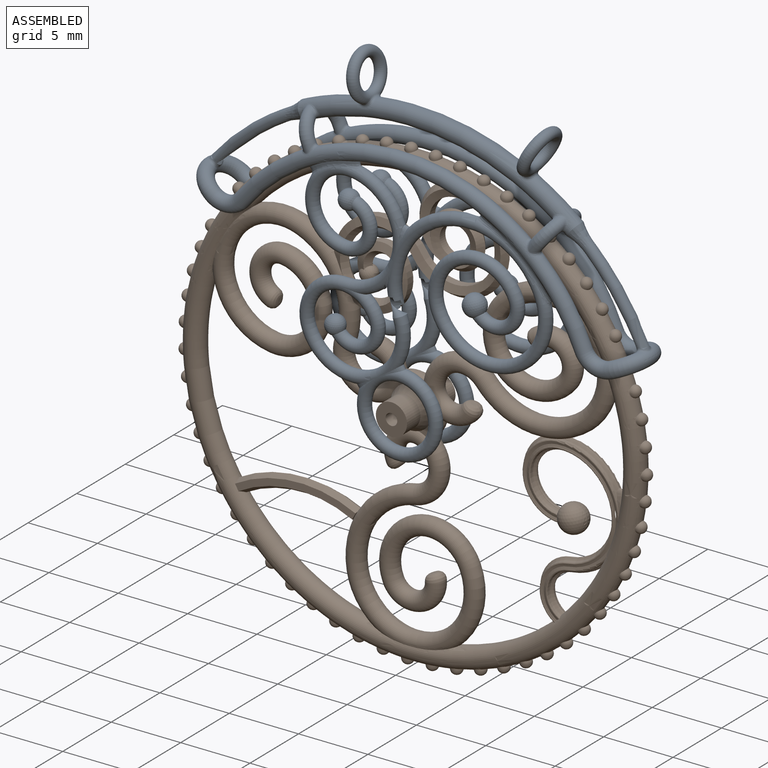
[diagram: assembled view]
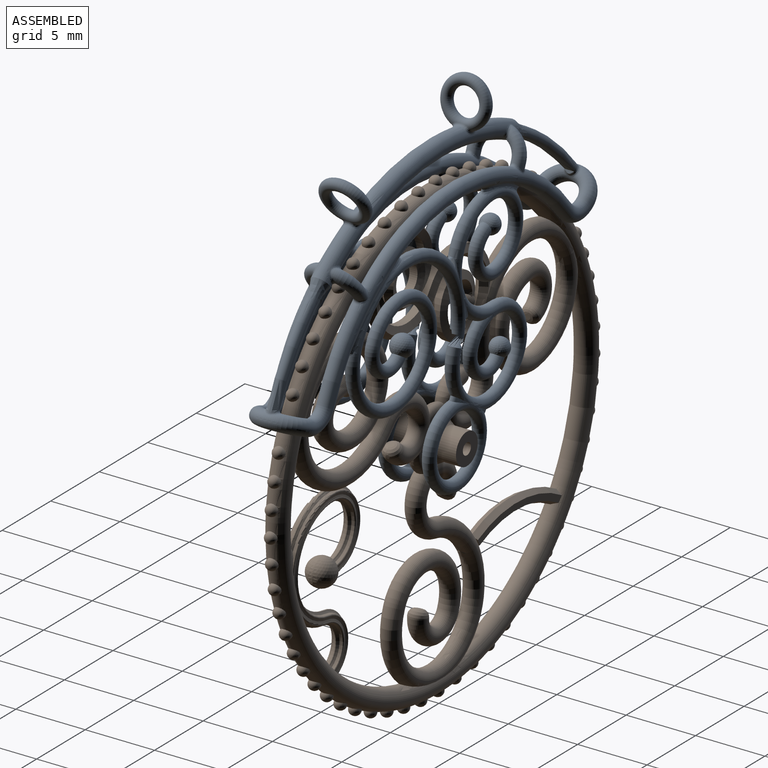
[diagram: assembled view, second angle]
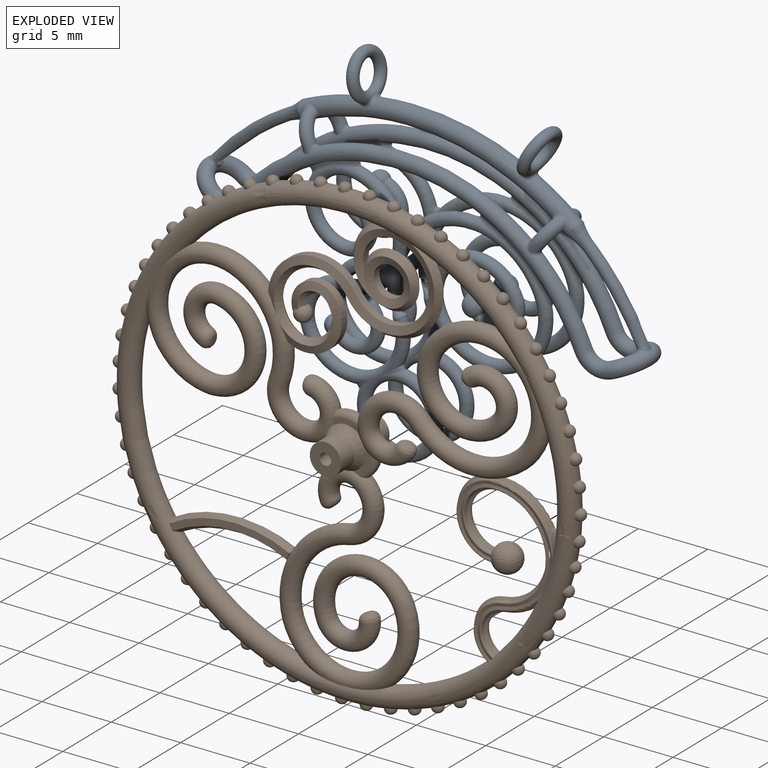
[diagram: exploded view]
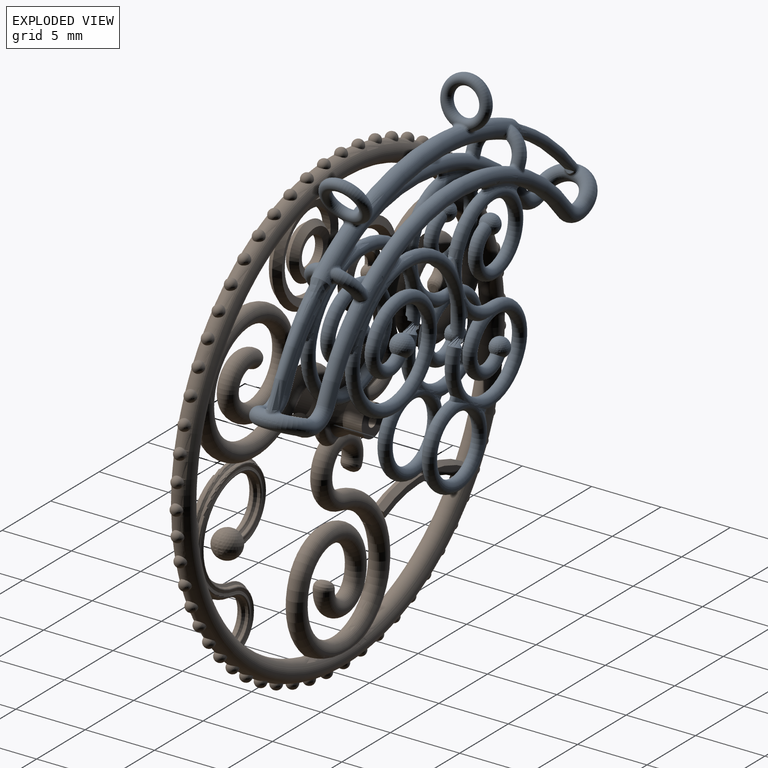
[diagram: exploded view, second angle]
ASSEMBLY  parts=2 mates=2
PART A: 101 faces, bbox 29.9x4.8x25.5 mm
  f0: bspline ~5.75x3.38mm, area 0.4mm2, adj f3,f90,f91,f93
  f1: bspline ~3.45x0.41mm, area 0.1mm2, adj f98,f99,f100
  f2: bspline ~5.74x3.36mm, area 0.4mm2, adj f4,f84,f85,f87
  f3: bspline ~0.48x0.41mm, area 0mm2, adj f0,f92,f95
  f4: bspline ~0.48x0.41mm, area 0mm2, adj f2,f86,f89
  f5: torus R=18.27mm, axis (0,1,0), area 76.9mm2, adj f24,f25,f56,f57,f58,f59,f60,f61
  f6: torus R=1.6mm, axis (1,0,0), area 5.1mm2, adj f17,f58
  f7: torus R=1.6mm, axis (0.5,0,0.87), area 5.1mm2, adj f20,f60
  f8: torus R=18.28mm, axis (0,-1,0), area 16.9mm2, adj f63,f68,f69
  f9: torus R=1.6mm, axis (0,0,1), area 16.4mm2, adj f10,f11,f62
  f10: torus R=1.5mm, axis (0,1,0), area 8.1mm2, adj f9,f15
  f11: torus R=1.5mm, axis (0,1,0), area 8.1mm2, adj f9,f16
  f12: torus R=1.6mm, axis (0.87,0,-0.5), area 16.4mm2, adj f13,f14,f63
  f13: torus R=1.5mm, axis (0,-1,0), area 8.1mm2, adj f12,f16
  f14: torus R=1.5mm, axis (0,-1,0), area 8.1mm2, adj f12,f15
  f15: torus R=14.31mm, axis (0,-1,0), area 92.2mm2, adj f10,f14,f64,f66,f79,f84,f86
  f16: torus R=14.31mm, axis (0,-1,0), area 91.2mm2, adj f11,f13,f65,f67,f90,f92,f98
  f17: cylinder r=0.45mm len=0.9mm, axis (0,0,-1), area 0.9mm2, adj f6,f67
  f18: cylinder r=0.45mm len=0.9mm, axis (0,0,1), area 0.9mm2, adj f19,f66
  f19: torus R=1.6mm, axis (1,0,0), area 5.1mm2, adj f18,f59
  f20: cylinder r=0.45mm len=1.04mm, axis (0.87,0,-0.5), area 0.9mm2, adj f7,f65
  f21: cylinder r=0.45mm len=1.04mm, axis (-0.87,0,0.5), area 0.9mm2, adj f22,f64
  f22: torus R=1.6mm, axis (0.5,0,0.87), area 5.1mm2, adj f21,f61
  f23: torus R=18.07mm, axis (0,1,0), area 17mm2, adj f62,f70,f71
  f24: cone r=0.65mm half-angle=22deg, axis (-1,0,0.04), area 0mm2, adj f5,f68
  f25: cone r=0.65mm half-angle=22deg, axis (0.46,0,0.89), area 0mm2, adj f5,f70
  f26: torus R=5.5mm, axis (0,1,0), area 39.4mm2, adj f28,f32,f73,f74,f91
  f27: torus R=2.6mm, axis (0,1,0), area 20.3mm2, adj f34,f35,f100
  f28: torus R=3.5mm, axis (0,-1,0), area 26.8mm2, adj f26,f30,f72
  f29: torus R=1.6mm, axis (0,1,0), area 12.4mm2, adj f31,f36
  f30: torus R=2.6mm, axis (0,-1,0), area 21.2mm2, adj f28,f33,f34
  f31: torus R=3mm, axis (0,1,0), area 26.6mm2, adj f29,f32
  f32: torus R=4mm, axis (0,1,0), area 35.2mm2, adj f26,f31,f93,f94,f95
  f33: torus R=1.6mm, axis (0,-1,0), area 12.8mm2, adj f30,f39
  f34: torus R=3.8mm, axis (0,1,0), area 26.2mm2, adj f27,f30,f73,f74,f99
  f35: torus R=1.6mm, axis (0,1,0), area 12.7mm2, adj f27,f37
  f36: sphere r=0.78mm, area 6.9mm2, adj f29
  f37: sphere r=0.68mm, area 5.2mm2, adj f35
  f38: torus R=2.57mm, axis (0,-1,0), area 41.3mm2, adj f72
  f39: sphere r=0.67mm, area 4.9mm2, adj f33
  f40: torus R=3.5mm, axis (0,-1,0), area 26.8mm2, adj f42,f45,f75
  f41: torus R=1.6mm, axis (0,1,0), area 12.4mm2, adj f43,f50
  f42: torus R=2.6mm, axis (0,-1,0), area 21.2mm2, adj f40,f46,f47
  f43: torus R=3mm, axis (0,1,0), area 26.6mm2, adj f41,f44
  f44: torus R=4mm, axis (0,1,0), area 35.2mm2, adj f43,f45,f87,f88,f89
  f45: torus R=5.5mm, axis (0,1,0), area 39.4mm2, adj f40,f44,f76,f77,f85
  f46: torus R=1.6mm, axis (0,-1,0), area 12.8mm2, adj f42,f53
  f47: torus R=3.8mm, axis (0,1,0), area 26.2mm2, adj f42,f48,f76,f77,f96
  f48: torus R=2.6mm, axis (0,1,0), area 20.3mm2, adj f47,f49,f97
  f49: torus R=1.6mm, axis (0,1,0), area 12.7mm2, adj f48,f51
  f50: sphere r=0.78mm, area 6.9mm2, adj f41
  f51: sphere r=0.68mm, area 5.2mm2, adj f49
  f52: torus R=2.57mm, axis (0,-1,0), area 41.3mm2, adj f75
  f53: sphere r=0.67mm, area 4.9mm2, adj f46
  f54: torus R=1.4mm, axis (0.66,0,0.75), area 20.7mm2, adj f57
  f55: torus R=1.4mm, axis (0.97,0,0.24), area 20.3mm2, adj f56
  f56: bspline ~1.47x1.17mm, area 1.3mm2, adj f5,f55
  f57: bspline ~1.35x0.94mm, area 1.3mm2, adj f5,f54
  f58: bspline ~1.3x1mm, area 0.8mm2, adj f5,f6
  f59: bspline ~1.31x1mm, area 0.8mm2, adj f5,f19
  f60: bspline ~1.24x1.1mm, area 0.8mm2, adj f5,f7
  f61: bspline ~1.24x1.1mm, area 0.8mm2, adj f5,f22
  f62: bspline ~1.19x0.88mm, area 0.7mm2, adj f9,f23
  f63: bspline ~1.19x0.79mm, area 0.7mm2, adj f8,f12
  f64: bspline ~1.15x0.95mm, area 0.7mm2, adj f15,f21
  f65: bspline ~1.15x0.95mm, area 0.7mm2, adj f16,f20
  f66: bspline ~1.28x0.95mm, area 0.7mm2, adj f15,f18
  f67: bspline ~1.28x0.95mm, area 0.7mm2, adj f16,f17
  f68: bspline ~1.3x0.95mm, area 0.9mm2, adj f8,f24,f69
  f69: bspline ~1.6x1.3mm, area 3.5mm2, adj f5,f8,f68
  f70: bspline ~1.28x0.57mm, area 0.4mm2, adj f23,f25,f71
  f71: bspline ~1.92x1.47mm, area 4mm2, adj f5,f23,f70
  f72: bspline ~3.84x0.98mm, area 1.2mm2, adj f28,f38
  f73: bspline ~2.01x1.61mm, area 0.5mm2, adj f26,f34
  f74: bspline ~1.9x1.74mm, area 0.7mm2, adj f26,f34
  f75: bspline ~3.84x0.98mm, area 1.2mm2, adj f40,f52
  f76: bspline ~2.01x1.61mm, area 0.5mm2, adj f45,f47
  f77: bspline ~1.9x1.74mm, area 0.7mm2, adj f45,f47
  f78: bspline ~3.76x0.69mm, area 0.2mm2, adj f98,f99,f100
  f79: bspline ~3.82x0.77mm, area 1.4mm2, adj f15,f96,f97
  f80: bspline ~5.39x3.03mm, area 0.4mm2, adj f81,f90,f91,f94
  f81: bspline ~0.48x0.41mm, area 0mm2, adj f80,f92,f95
  f82: bspline ~0.48x0.41mm, area 0mm2, adj f83,f86,f89
  f83: bspline ~5.39x3.03mm, area 0.4mm2, adj f82,f84,f85,f88
  f84: bspline ~5.79x3.36mm, area 2.6mm2, adj f2,f15,f83,f85,f86
  f85: bspline ~5.73x3.42mm, area 2.4mm2, adj f2,f45,f83,f84,f87,f88
  f86: bspline ~0.97x0.74mm, area 0.4mm2, adj f4,f15,f82,f84,f89
  f87: bspline ~0.44x0.27mm, area 0mm2, adj f2,f44,f85,f89
  f88: bspline ~0.66x0.3mm, area 0mm2, adj f44,f83,f85,f89
  f89: bspline ~0.83x0.65mm, area 0.2mm2, adj f4,f44,f82,f86,f87,f88
  f90: bspline ~5.78x3.36mm, area 2.6mm2, adj f0,f16,f80,f91,f92
  f91: bspline ~5.77x3.43mm, area 2.4mm2, adj f0,f26,f80,f90,f93,f94
  f92: bspline ~0.97x0.74mm, area 0.4mm2, adj f3,f16,f81,f90,f95
  f93: bspline ~0.45x0.27mm, area 0mm2, adj f0,f32,f91,f95
  f94: bspline ~0.67x0.31mm, area 0mm2, adj f32,f80,f91,f95
  f95: bspline ~0.83x0.65mm, area 0.2mm2, adj f3,f32,f81,f92,f93,f94
  f96: bspline ~1.3x0.77mm, area 0.5mm2, adj f47,f79,f97
  f97: bspline ~3.48x0.8mm, area 1.3mm2, adj f48,f79,f96
  f98: bspline ~4.31x0.87mm, area 1.9mm2, adj f1,f16,f78,f99,f100
  f99: bspline ~0.84x0.72mm, area 0.5mm2, adj f1,f34,f78,f98,f100
  f100: bspline ~3.48x0.8mm, area 1.3mm2, adj f1,f27,f78,f98,f99
PART B: 346 faces, bbox 36x5x36 mm
  f0: torus R=15.88mm, axis (0,-1,0), area 406.5mm2, adj f1,f103,f104,f105,f106,f107,f108,f109
  f1: torus R=4.1mm, axis (0,-1,0), area 1.4mm2, adj f0,f2,f101,f102,f103,f118
  f2: cone r=4.22mm half-angle=14.3deg, axis (0,-1,0), area 0.8mm2, adj f1,f3,f99,f100,f102
  f3: torus R=5.2mm, axis (0,1,0), area 32.3mm2, adj f2,f4,f5,f6,f7,f28,f29,f30
  f4: torus R=4.3mm, axis (0,-1,0), area 0.8mm2, adj f3,f5,f100,f102
  f5: cone r=4.22mm half-angle=48.5deg, axis (0,1,0), area 0.8mm2, adj f3,f4,f6,f102
  f6: cone r=4.19mm half-angle=15.1deg, axis (0,1,0), area 0.7mm2, adj f3,f5,f7,f102,f117
  f7: cone r=2.7mm half-angle=15.1deg, axis (0,1,0), area 1.1mm2, adj f3,f6,f8,f27,f28
  f8: torus R=2.61mm, axis (0,-1,0), area 1.7mm2, adj f7,f9,f27,f117
  f9: cone r=2.41mm half-angle=72.7deg, axis (0,-1,0), area 1.2mm2, adj f8,f10,f27,f116
  f10: cone r=2.27mm half-angle=74.3deg, axis (0,1,0), area 1mm2, adj f9,f11,f27,f114
  f11: torus R=2.21mm, axis (0,-1,0), area 1.5mm2, adj f10,f12,f26,f27
  f12: torus R=3.7mm, axis (0,-1,0), area 2.6mm2, adj f11,f13,f114,f301
  f13: cone r=3.57mm half-angle=14.3deg, axis (0,-1,0), area 1.6mm2, adj f12,f14,f26,f300
  f14: cone r=3.47mm half-angle=45.7deg, axis (0,-1,0), area 1.6mm2, adj f13,f15,f25,f299
  f15: cone r=1.98mm half-angle=45.7deg, axis (0,-1,0), area 0.9mm2, adj f14,f16,f26,f27
  f16: torus R=2.01mm, axis (0,-1,0), area 1.3mm2, adj f15,f17,f25,f27
  f17: cone r=2.08mm half-angle=45.7deg, axis (0,1,0), area 0.9mm2, adj f16,f18,f24,f27
  f18: cone r=2.12mm half-angle=12.7deg, axis (0,1,0), area 1mm2, adj f17,f19,f23,f27
  f19: torus R=2.21mm, axis (0,-1,0), area 1.4mm2, adj f18,f20,f21,f27
  f20: torus R=3.7mm, axis (0,-1,0), area 2.4mm2, adj f19,f23,f104,f295
  f21: cone r=2.41mm half-angle=75.1deg, axis (0,-1,0), area 1mm2, adj f19,f22,f27,f104
  f22: cone r=2.55mm half-angle=74.3deg, axis (0,1,0), area 1.1mm2, adj f21,f27,f101,f103
  f23: cone r=3.61mm half-angle=12.7deg, axis (0,1,0), area 1.8mm2, adj f18,f20,f24,f296
  f24: cone r=3.57mm half-angle=45.7deg, axis (0,1,0), area 1.6mm2, adj f17,f23,f25,f297
  f25: torus R=3.5mm, axis (0,-1,0), area 2.4mm2, adj f14,f16,f24,f298
  f26: cone r=2.08mm half-angle=14.3deg, axis (0,-1,0), area 0.9mm2, adj f11,f13,f15,f27
  f27: sphere r=1mm, area 11.9mm2, adj f7,f8,f9,f10,f11,f15,f16,f17
  f28: cone r=2.73mm half-angle=48.5deg, axis (0,1,0), area 1.3mm2, adj f3,f7,f27,f29
  f29: torus R=2.81mm, axis (0,-1,0), area 1.4mm2, adj f3,f27,f28,f30
  f30: cone r=2.84mm half-angle=45.7deg, axis (0,-1,0), area 1.1mm2, adj f3,f27,f29,f99
  f31: torus R=2.1mm, axis (0,-1,0), area 19.5mm2, adj f3,f32,f94,f95,f96
  f32: torus R=1.85mm, axis (0,-1,0), area 1.1mm2, adj f31,f33,f91,f94,f96
  f33: plane 1.88x1.14mm, normal (0,-1,0), area 0.7mm2, adj f32,f34,f91,f96
  f34: cone r=1.75mm half-angle=29deg, axis (0,1,0), area 6.4mm2, adj f33,f35,f86,f87,f90,f91,f96
  f35: cylinder r=1.12mm len=2.25mm, axis (0,1,0), area 9.7mm2, adj f34,f36
  f36: plane 2.25x2.25mm, normal (0,-1,0), area 3.4mm2, adj f35,f37
  f37: cylinder r=0.42mm len=5mm, axis (0,1,0), area 13.2mm2, adj f36,f38
  f38: plane 2.25x2.25mm, normal (0,1,0), area 3.4mm2, adj f37,f39
  f39: cylinder r=1.12mm len=2.25mm, axis (0,1,0), area 9.7mm2, adj f38,f40
  f40: cone r=1.75mm half-angle=29deg, axis (0,-1,0), area 6.4mm2, adj f39,f41,f49,f50,f87,f91,f96
  f41: plane 1.74x1.49mm, normal (0,1,0), area 0.7mm2, adj f40,f42,f87,f96
  f42: torus R=1.85mm, axis (0,-1,0), area 1.1mm2, adj f41,f43,f48,f87,f96
  f43: torus R=2.1mm, axis (0,-1,0), area 19.5mm2, adj f42,f44,f45,f48,f87
  f44: torus R=1.85mm, axis (0,-1,0), area 1.1mm2, adj f43,f48,f86,f87,f96
  f45: torus R=5.2mm, axis (0,1,0), area 32.7mm2, adj f43,f46,f47,f314,f315,f317,f318,f319
  f46: plane 0.49x0.44mm, normal (0.75,0,0.66), area 0.1mm2, adj f45,f315,f316,f317
  f47: plane 0.5x0.44mm, normal (0.75,0,0.66), area 0.1mm2, adj f45,f313,f314,f318
  f48: cylinder r=2.25mm len=1.21mm, axis (0,1,0), area 0.2mm2, adj f42,f43,f44,f96
  f49: plane 1.88x1.14mm, normal (0,1,0), area 0.7mm2, adj f40,f91,f95,f96
  f50: plane 1.88x0.82mm, normal (0,1,0), area 0.7mm2, adj f40,f51,f87,f91
  f51: torus R=1.85mm, axis (0,-1,0), area 1.1mm2, adj f50,f52,f54,f87,f91
  f52: cylinder r=2.25mm len=1.51mm, axis (0,1,0), area 0.2mm2, adj f51,f53,f54,f87
  f53: torus R=1.85mm, axis (0,-1,0), area 1.1mm2, adj f52,f54,f87,f90,f91
  f54: torus R=2.1mm, axis (0,-1,0), area 19.5mm2, adj f51,f52,f53,f55,f91
  f55: torus R=5.2mm, axis (0,1,0), area 30.3mm2, adj f54,f56,f69,f82,f83,f84,f85,f324
  f56: bspline ~6.72x3.9mm, area 4.9mm2, adj f55,f57,f69,f85,f292
  f57: bspline ~6.52x6.52mm, area 4.8mm2, adj f56,f58,f66,f68,f293
  f58: bspline ~4.04x2.35mm, area 3.4mm2, adj f57,f59,f65,f85
  f59: bspline ~2.37x1.07mm, area 1.7mm2, adj f58,f60,f63,f64
  f60: bspline ~2.37x1.07mm, area 1.7mm2, adj f59,f61,f64,f65
  f61: bspline ~3.48x1.66mm, area 2.5mm2, adj f60,f62,f64,f83
  f62: cylinder r=1.75mm len=3.48mm, axis (0,1,0), area 3mm2, adj f61,f63,f64,f84
  f63: bspline ~3.48x1.66mm, area 2.5mm2, adj f59,f62,f64,f85
  f64: sphere r=0.6mm, area 3.8mm2, adj f59,f60,f61,f62,f63
  f65: bspline ~4.04x2.35mm, area 3.4mm2, adj f58,f60,f66,f83
  f66: bspline ~6.52x6.52mm, area 4.8mm2, adj f57,f65,f67,f82,f294
  f67: torus R=5.2mm, axis (0,1,0), area 0.1mm2, adj f66
  f68: torus R=5.2mm, axis (0,1,0), area 0.1mm2, adj f57
  f69: cylinder r=3.4mm len=6.41mm, axis (0,1,0), area 5mm2, adj f55,f56,f70,f82
  f70: cylinder r=2.85mm len=5.67mm, axis (0,-1,0), area 6.6mm2, adj f69,f71,f287,f292
  f71: cylinder r=2mm len=3.03mm, axis (0,-1,0), area 2.2mm2, adj f70,f72,f81,f288,f291
  f72: cone r=1.65mm half-angle=36deg, axis (0,1,0), area 1.9mm2, adj f71,f73,f80,f81,f288
  f73: bspline ~3.66x2.96mm, area 3.3mm2, adj f72,f74,f79,f289
  f74: bspline ~3.66x2.96mm, area 3.3mm2, adj f73,f75,f81,f290
  f75: bspline ~4.54x4.54mm, area 2.5mm2, adj f74,f76,f78
  f76: cone r=1.65mm half-angle=72deg, axis (0,1,0), area 2.5mm2, adj f75,f77,f81
  f77: cylinder r=1.1mm len=2.04mm, axis (0,1,0), area 2mm2, adj f76,f78,f80
  f78: cylinder r=1.1mm len=2.04mm, axis (0,-1,0), area 2mm2, adj f75,f77,f79
  f79: bspline ~4.54x4.54mm, area 2.5mm2, adj f73,f78,f80
  f80: cone r=1.1mm half-angle=72deg, axis (0,-1,0), area 2.5mm2, adj f72,f77,f79
  f81: cone r=1.99mm half-angle=36deg, axis (0,-1,0), area 1.9mm2, adj f71,f72,f74,f76,f291
  f82: bspline ~6.72x3.9mm, area 4.9mm2, adj f55,f66,f69,f83,f287
  f83: bspline ~5.95x5.95mm, area 3.8mm2, adj f55,f61,f65,f82,f84
  f84: cylinder r=2.6mm len=4.65mm, axis (0,1,0), area 3.9mm2, adj f55,f62,f83,f85
  f85: bspline ~5.95x5.95mm, area 3.8mm2, adj f55,f56,f58,f63,f84
  f86: plane 1.74x1.49mm, normal (0,-1,0), area 0.7mm2, adj f34,f44,f87,f96
  f87: torus R=1.5mm, axis (0,-1,0), area 13.4mm2, adj f34,f40,f41,f42,f43,f44,f50,f51
  f88: bspline ~1.3x1.29mm, area 2.1mm2, adj f87,f89
  f89: plane 0.4x0.4mm, normal (0.94,0,0.33), area 0.1mm2, adj f88
  f90: plane 1.88x0.82mm, normal (0,-1,0), area 0.7mm2, adj f34,f53,f87,f91
  f91: torus R=1.5mm, axis (0,-1,0), area 13.4mm2, adj f32,f33,f34,f40,f49,f50,f51,f53
  f92: bspline ~1.3x1.25mm, area 2.1mm2, adj f91,f93
  f93: plane 0.41x0.4mm, normal (-0.18,0,-0.98), area 0.1mm2, adj f92
  f94: cylinder r=2.25mm len=1.41mm, axis (0,1,0), area 0.2mm2, adj f31,f32,f91,f95
  f95: torus R=1.85mm, axis (0,-1,0), area 1.1mm2, adj f31,f49,f91,f94,f96
  f96: torus R=1.5mm, axis (0,-1,0), area 13.4mm2, adj f31,f32,f33,f34,f40,f41,f42,f44
  f97: bspline ~1.3x1.1mm, area 2.1mm2, adj f96,f98
  f98: plane 0.4x0.32mm, normal (-0.76,0,0.65), area 0.1mm2, adj f97
  f99: cone r=2.73mm half-angle=14.3deg, axis (0,-1,0), area 1.1mm2, adj f2,f3,f27,f30,f101
  f100: cone r=4.33mm half-angle=45.7deg, axis (0,-1,0), area 0.7mm2, adj f2,f3,f4,f102
  f101: torus R=2.61mm, axis (0,-1,0), area 1.8mm2, adj f1,f22,f27,f99
  f102: bspline ~4.35x3.19mm, area 0.6mm2, adj f1,f2,f4,f5,f6,f100,f117,f118
  f103: cone r=4.04mm half-angle=74.3deg, axis (0,1,0), area 1mm2, adj f0,f1,f22,f104
  f104: cone r=3.9mm half-angle=75.1deg, axis (0,-1,0), area 1.6mm2, adj f0,f20,f21,f103,f105,f312
  f105: cone r=4.04mm half-angle=74.3deg, axis (0,1,0), area 0.5mm2, adj f0,f104,f106,f311
  f106: torus R=4.1mm, axis (0,-1,0), area 0.7mm2, adj f0,f105,f107,f310
  f107: cone r=4.22mm half-angle=14.3deg, axis (0,-1,0), area 0.4mm2, adj f0,f106,f108,f309
  f108: cone r=4.33mm half-angle=45.7deg, axis (0,-1,0), area 0.4mm2, adj f0,f107,f109,f308
  f109: torus R=4.3mm, axis (0,-1,0), area 0.4mm2, adj f0,f108,f110,f307
  f110: cone r=4.22mm half-angle=48.5deg, axis (0,1,0), area 0.4mm2, adj f0,f109,f111,f306
  f111: cone r=4.19mm half-angle=15.1deg, axis (0,1,0), area 0.4mm2, adj f0,f110,f112,f305
  f112: torus R=4.1mm, axis (0,-1,0), area 0.7mm2, adj f0,f111,f113,f304
  f113: cone r=3.9mm half-angle=72.7deg, axis (0,-1,0), area 0.6mm2, adj f0,f112,f114,f303
  f114: cone r=3.76mm half-angle=74.3deg, axis (0,1,0), area 1.7mm2, adj f0,f10,f12,f113,f115,f116,f302
  f115: bspline ~4.14x3.13mm, area 0mm2, adj f114,f116
  f116: cone r=3.9mm half-angle=72.7deg, axis (0,-1,0), area 1.1mm2, adj f0,f9,f114,f115,f117
  f117: torus R=4.1mm, axis (0,-1,0), area 1.3mm2, adj f0,f6,f8,f102,f116,f118
  f118: bspline ~4.44x4.02mm, area 0.2mm2, adj f0,f1,f102,f117
  f119: cylinder r=0.41mm len=0.83mm, axis (-0.99,0,-0.11), area 0.2mm2, adj f0,f120
  f120: torus R=0.01mm, axis (-0.99,0,-0.11), area 1mm2, adj f119,f121
  f121: plane 0.02x0.02mm, normal (0.99,0,0.11), area 0mm2, adj f120
  f122: cylinder r=0.41mm len=0.83mm, axis (-0.98,0,-0.21), area 0.2mm2, adj f0,f123
  f123: torus R=0.01mm, axis (-0.98,0,-0.21), area 1mm2, adj f122,f124
  f124: plane 0.02x0.02mm, normal (0.98,0,0.21), area 0mm2, adj f123
  f125: cylinder r=0.41mm len=0.82mm, axis (-0.95,0,-0.31), area 0.2mm2, adj f0,f126
  f126: torus R=0.01mm, axis (-0.95,0,-0.31), area 1mm2, adj f125,f127
  f127: plane 0.02x0.02mm, normal (0.95,0,0.31), area 0mm2, adj f126
  f128: cylinder r=0.41mm len=0.82mm, axis (-0.91,0,-0.41), area 0.2mm2, adj f0,f129
  f129: torus R=0.01mm, axis (-0.91,0,-0.41), area 1mm2, adj f128,f130
  f130: plane 0.02x0.02mm, normal (0.91,0,0.41), area 0mm2, adj f129
  f131: cylinder r=0.41mm len=0.82mm, axis (-0.86,0,-0.51), area 0.2mm2, adj f0,f132
  f132: torus R=0.01mm, axis (-0.86,0,-0.51), area 1mm2, adj f131,f133
  f133: plane 0.02x0.02mm, normal (0.86,0,0.51), area 0mm2, adj f132
  f134: cylinder r=0.41mm len=0.82mm, axis (-0.8,0,-0.6), area 0.2mm2, adj f0,f135
  f135: torus R=0.01mm, axis (-0.8,0,-0.6), area 1mm2, adj f134,f136
  f136: plane 0.02x0.02mm, normal (0.8,0,0.6), area 0mm2, adj f135
  f137: cylinder r=0.41mm len=0.82mm, axis (-0.73,0,-0.68), area 0.2mm2, adj f0,f138
  f138: torus R=0.01mm, axis (-0.73,0,-0.68), area 1mm2, adj f137,f139
  f139: plane 0.02x0.01mm, normal (0.73,0,0.68), area 0mm2, adj f138
  f140: cylinder r=0.41mm len=0.82mm, axis (-0.66,0,-0.75), area 0.2mm2, adj f0,f141
  f141: torus R=0.01mm, axis (-0.66,0,-0.75), area 1mm2, adj f140,f142
  f142: plane 0.02x0.02mm, normal (0.66,0,0.75), area 0mm2, adj f141
  f143: cylinder r=0.41mm len=0.82mm, axis (-0.57,0,-0.82), area 0.2mm2, adj f0,f144
  f144: torus R=0.01mm, axis (-0.57,0,-0.82), area 1mm2, adj f143,f145
  f145: plane 0.02x0.02mm, normal (0.57,0,0.82), area 0mm2, adj f144
  f146: cylinder r=0.41mm len=0.82mm, axis (-0.48,0,-0.87), area 0.2mm2, adj f0,f147
  f147: torus R=0.01mm, axis (-0.48,0,-0.87), area 1mm2, adj f146,f148
  f148: plane 0.02x0.02mm, normal (0.48,0,0.87), area 0mm2, adj f147
  f149: cylinder r=0.41mm len=0.82mm, axis (-0.39,0,-0.92), area 0.2mm2, adj f0,f150
  f150: torus R=0.01mm, axis (-0.39,0,-0.92), area 1mm2, adj f149,f151
  f151: plane 0.02x0.02mm, normal (0.39,0,0.92), area 0mm2, adj f150
  f152: cylinder r=0.41mm len=0.82mm, axis (-0.29,0,-0.96), area 0.2mm2, adj f0,f153
  f153: torus R=0.01mm, axis (-0.29,0,-0.96), area 1mm2, adj f152,f154
  f154: plane 0.02x0.02mm, normal (0.29,0,0.96), area 0mm2, adj f153
  f155: cylinder r=0.41mm len=0.83mm, axis (-0.19,0,-0.98), area 0.2mm2, adj f0,f156
  f156: torus R=0.01mm, axis (-0.19,0,-0.98), area 1mm2, adj f155,f157
  f157: plane 0.02x0.02mm, normal (0.19,0,0.98), area 0mm2, adj f156
  f158: cylinder r=0.41mm len=0.83mm, axis (-0.08,0,-1), area 0.2mm2, adj f0,f159
  f159: torus R=0.01mm, axis (-0.08,0,-1), area 1mm2, adj f158,f160
  f160: plane 0.02x0.02mm, normal (0.08,0,1), area 0mm2, adj f159
  f161: cylinder r=0.41mm len=0.82mm, axis (0.03,0,-1), area 0.2mm2, adj f0,f162
  f162: torus R=0.01mm, axis (0.03,0,-1), area 1mm2, adj f161,f163
  f163: plane 0.02x0.02mm, normal (-0.03,0,1), area 0mm2, adj f162
  f164: cylinder r=0.41mm len=0.83mm, axis (0.13,0,-0.99), area 0.2mm2, adj f0,f165
  f165: torus R=0.01mm, axis (0.13,0,-0.99), area 1mm2, adj f164,f166
  f166: plane 0.02x0.02mm, normal (-0.13,0,0.99), area 0mm2, adj f165
  f167: cylinder r=0.41mm len=0.83mm, axis (0.24,0,-0.97), area 0.2mm2, adj f0,f168
  f168: torus R=0.01mm, axis (0.24,0,-0.97), area 1mm2, adj f167,f169
  f169: plane 0.02x0.02mm, normal (-0.24,0,0.97), area 0mm2, adj f168
  f170: cylinder r=0.41mm len=0.82mm, axis (0.34,0,-0.94), area 0.2mm2, adj f0,f171
  f171: torus R=0.01mm, axis (0.34,0,-0.94), area 1mm2, adj f170,f172
  f172: plane 0.02x0.02mm, normal (-0.34,0,0.94), area 0mm2, adj f171
  f173: cylinder r=0.41mm len=0.82mm, axis (0.44,0,-0.9), area 0.2mm2, adj f0,f174
  f174: torus R=0.01mm, axis (0.44,0,-0.9), area 1mm2, adj f173,f175
  f175: plane 0.02x0.02mm, normal (-0.44,0,0.9), area 0mm2, adj f174
  f176: cylinder r=0.41mm len=0.82mm, axis (0.53,0,-0.85), area 0.2mm2, adj f0,f177
  f177: torus R=0.01mm, axis (0.53,0,-0.85), area 1mm2, adj f176,f178
  f178: plane 0.02x0.02mm, normal (-0.53,0,0.85), area 0mm2, adj f177
  f179: cylinder r=0.41mm len=0.82mm, axis (0.62,0,-0.79), area 0.2mm2, adj f0,f180
  f180: torus R=0.01mm, axis (0.62,0,-0.79), area 1mm2, adj f179,f181
  f181: plane 0.02x0.02mm, normal (-0.62,0,0.79), area 0mm2, adj f180
  f182: cylinder r=0.41mm len=0.82mm, axis (0.7,0,-0.72), area 0.2mm2, adj f0,f183
  f183: torus R=0.01mm, axis (0.7,0,-0.72), area 1mm2, adj f182,f184
  f184: plane 0.02x0.01mm, normal (-0.7,0,0.72), area 0mm2, adj f183
  f185: cylinder r=0.41mm len=0.82mm, axis (0.77,0,-0.64), area 0.2mm2, adj f0,f186
  f186: torus R=0.01mm, axis (0.77,0,-0.64), area 1mm2, adj f185,f187
  f187: plane 0.02x0.02mm, normal (-0.77,0,0.64), area 0mm2, adj f186
  f188: cylinder r=0.41mm len=0.82mm, axis (0.83,0,-0.55), area 0.2mm2, adj f0,f189
  f189: torus R=0.01mm, axis (0.83,0,-0.55), area 1mm2, adj f188,f190
  f190: plane 0.02x0.02mm, normal (-0.83,0,0.55), area 0mm2, adj f189
  f191: cylinder r=0.41mm len=0.82mm, axis (0.89,0,-0.46), area 0.2mm2, adj f0,f192
  f192: torus R=0.01mm, axis (0.89,0,-0.46), area 1mm2, adj f191,f193
  f193: plane 0.02x0.02mm, normal (-0.89,0,0.46), area 0mm2, adj f192
  f194: cylinder r=0.41mm len=0.82mm, axis (0.93,0,-0.36), area 0.2mm2, adj f0,f195
  f195: torus R=0.01mm, axis (0.93,0,-0.36), area 1mm2, adj f194,f196
  f196: plane 0.02x0.02mm, normal (-0.93,0,0.36), area 0mm2, adj f195
  f197: cylinder r=0.41mm len=0.82mm, axis (0.96,0,-0.26), area 0.2mm2, adj f0,f198
  f198: torus R=0.01mm, axis (0.96,0,-0.26), area 1mm2, adj f197,f199
  f199: plane 0.02x0.02mm, normal (-0.96,0,0.26), area 0mm2, adj f198
  f200: cylinder r=0.41mm len=0.83mm, axis (0.99,0,-0.16), area 0.2mm2, adj f0,f201
  f201: torus R=0.01mm, axis (0.99,0,-0.16), area 1mm2, adj f200,f202
  f202: plane 0.02x0.02mm, normal (-0.99,0,0.16), area 0mm2, adj f201
  f203: cylinder r=0.41mm len=0.83mm, axis (1,0,-0.05), area 0.2mm2, adj f0,f204
  f204: torus R=0.01mm, axis (1,0,-0.05), area 1mm2, adj f203,f205
  f205: plane 0.02x0.02mm, normal (-1,0,0.05), area 0mm2, adj f204
  f206: cylinder r=0.41mm len=0.83mm, axis (1,0,0.05), area 0.2mm2, adj f0,f207
  f207: torus R=0.01mm, axis (1,0,0.05), area 1mm2, adj f206,f208
  f208: plane 0.02x0.02mm, normal (-1,0,-0.05), area 0mm2, adj f207
  f209: cylinder r=0.41mm len=0.83mm, axis (0.99,0,0.16), area 0.2mm2, adj f0,f210
  f210: torus R=0.01mm, axis (0.99,0,0.16), area 1mm2, adj f209,f211
  f211: plane 0.02x0.02mm, normal (-0.99,0,-0.16), area 0mm2, adj f210
  f212: cylinder r=0.41mm len=0.82mm, axis (0.96,0,0.26), area 0.2mm2, adj f0,f213
  f213: torus R=0.01mm, axis (0.96,0,0.26), area 1mm2, adj f212,f214
  f214: plane 0.02x0.02mm, normal (-0.96,0,-0.26), area 0mm2, adj f213
  f215: cylinder r=0.41mm len=0.82mm, axis (0.93,0,0.36), area 0.2mm2, adj f0,f216
  f216: torus R=0.01mm, axis (0.93,0,0.36), area 1mm2, adj f215,f217
  f217: plane 0.02x0.02mm, normal (-0.93,0,-0.36), area 0mm2, adj f216
  f218: cylinder r=0.41mm len=0.82mm, axis (0.89,0,0.46), area 0.2mm2, adj f0,f219
  f219: torus R=0.01mm, axis (0.89,0,0.46), area 1mm2, adj f218,f220
  f220: plane 0.02x0.02mm, normal (-0.89,0,-0.46), area 0mm2, adj f219
  f221: cylinder r=0.41mm len=0.82mm, axis (0.83,0,0.55), area 0.2mm2, adj f0,f222
  f222: torus R=0.01mm, axis (0.83,0,0.55), area 1mm2, adj f221,f223
  f223: plane 0.02x0.02mm, normal (-0.83,0,-0.55), area 0mm2, adj f222
  f224: cylinder r=0.41mm len=0.82mm, axis (0.77,0,0.64), area 0.2mm2, adj f0,f225
  f225: torus R=0.01mm, axis (0.77,0,0.64), area 1mm2, adj f224,f226
  f226: plane 0.02x0.02mm, normal (-0.77,0,-0.64), area 0mm2, adj f225
  f227: cylinder r=0.41mm len=0.82mm, axis (0.7,0,0.72), area 0.2mm2, adj f0,f228
  f228: torus R=0.01mm, axis (0.7,0,0.72), area 1mm2, adj f227,f229
  f229: plane 0.02x0.01mm, normal (-0.7,0,-0.72), area 0mm2, adj f228
  f230: cylinder r=0.41mm len=0.82mm, axis (0.62,0,0.79), area 0.2mm2, adj f0,f231
  f231: torus R=0.01mm, axis (0.62,0,0.79), area 1mm2, adj f230,f232
  f232: plane 0.02x0.02mm, normal (-0.62,0,-0.79), area 0mm2, adj f231
  f233: cylinder r=0.41mm len=0.82mm, axis (0.53,0,0.85), area 0.2mm2, adj f0,f234
  f234: torus R=0.01mm, axis (0.53,0,0.85), area 1mm2, adj f233,f235
  f235: plane 0.02x0.02mm, normal (-0.53,0,-0.85), area 0mm2, adj f234
  f236: cylinder r=0.41mm len=0.82mm, axis (0.44,0,0.9), area 0.2mm2, adj f0,f237
  f237: torus R=0.01mm, axis (0.44,0,0.9), area 1mm2, adj f236,f238
  f238: plane 0.02x0.02mm, normal (-0.44,0,-0.9), area 0mm2, adj f237
  f239: cylinder r=0.41mm len=0.82mm, axis (0.34,0,0.94), area 0.2mm2, adj f0,f240
  f240: torus R=0.01mm, axis (0.34,0,0.94), area 1mm2, adj f239,f241
  f241: plane 0.02x0.02mm, normal (-0.34,0,-0.94), area 0mm2, adj f240
  f242: cylinder r=0.41mm len=0.83mm, axis (-0.08,0,1), area 0.2mm2, adj f0,f243
  f243: torus R=0.01mm, axis (-0.08,0,1), area 1mm2, adj f242,f244
  f244: plane 0.02x0.02mm, normal (0.08,0,-1), area 0mm2, adj f243
  f245: cylinder r=0.41mm len=0.83mm, axis (-0.19,0,0.98), area 0.2mm2, adj f0,f246
  f246: torus R=0.01mm, axis (-0.19,0,0.98), area 1mm2, adj f245,f247
  f247: plane 0.02x0.02mm, normal (0.19,0,-0.98), area 0mm2, adj f246
  f248: cylinder r=0.41mm len=0.82mm, axis (-0.29,0,0.96), area 0.2mm2, adj f0,f249
  f249: torus R=0.01mm, axis (-0.29,0,0.96), area 1mm2, adj f248,f250
  f250: plane 0.02x0.02mm, normal (0.29,0,-0.96), area 0mm2, adj f249
  f251: cylinder r=0.41mm len=0.82mm, axis (-0.39,0,0.92), area 0.2mm2, adj f0,f252
  f252: torus R=0.01mm, axis (-0.39,0,0.92), area 1mm2, adj f251,f253
  f253: plane 0.02x0.02mm, normal (0.39,0,-0.92), area 0mm2, adj f252
  f254: cylinder r=0.41mm len=0.82mm, axis (-0.48,0,0.87), area 0.2mm2, adj f0,f255
  f255: torus R=0.01mm, axis (-0.48,0,0.87), area 1mm2, adj f254,f256
  f256: plane 0.02x0.02mm, normal (0.48,0,-0.87), area 0mm2, adj f255
  f257: cylinder r=0.41mm len=0.82mm, axis (-0.57,0,0.82), area 0.2mm2, adj f0,f258
  f258: torus R=0.01mm, axis (-0.57,0,0.82), area 1mm2, adj f257,f259
  f259: plane 0.02x0.02mm, normal (0.57,0,-0.82), area 0mm2, adj f258
  f260: cylinder r=0.41mm len=0.82mm, axis (-0.66,0,0.75), area 0.2mm2, adj f0,f261
  f261: torus R=0.01mm, axis (-0.66,0,0.75), area 1mm2, adj f260,f262
  f262: plane 0.02x0.02mm, normal (0.66,0,-0.75), area 0mm2, adj f261
  f263: cylinder r=0.41mm len=0.82mm, axis (-0.73,0,0.68), area 0.2mm2, adj f0,f264
  f264: torus R=0.01mm, axis (-0.73,0,0.68), area 1mm2, adj f263,f265
  f265: plane 0.02x0.01mm, normal (0.73,0,-0.68), area 0mm2, adj f264
  f266: cylinder r=0.41mm len=0.82mm, axis (-0.8,0,0.6), area 0.2mm2, adj f0,f267
  f267: torus R=0.01mm, axis (-0.8,0,0.6), area 1mm2, adj f266,f268
  f268: plane 0.02x0.02mm, normal (0.8,0,-0.6), area 0mm2, adj f267
  f269: cylinder r=0.41mm len=0.82mm, axis (-0.86,0,0.51), area 0.2mm2, adj f0,f270
  f270: torus R=0.01mm, axis (-0.86,0,0.51), area 1mm2, adj f269,f271
  f271: plane 0.02x0.02mm, normal (0.86,0,-0.51), area 0mm2, adj f270
  f272: cylinder r=0.41mm len=0.82mm, axis (-0.91,0,0.41), area 0.2mm2, adj f0,f273
  f273: torus R=0.01mm, axis (-0.91,0,0.41), area 1mm2, adj f272,f274
  f274: plane 0.02x0.02mm, normal (0.91,0,-0.41), area 0mm2, adj f273
  f275: cylinder r=0.41mm len=0.82mm, axis (-0.95,0,0.31), area 0.2mm2, adj f0,f276
  f276: torus R=0.01mm, axis (-0.95,0,0.31), area 1mm2, adj f275,f277
  f277: plane 0.02x0.02mm, normal (0.95,0,-0.31), area 0mm2, adj f276
  f278: cylinder r=0.41mm len=0.83mm, axis (-0.98,0,0.21), area 0.2mm2, adj f0,f279
  f279: torus R=0.01mm, axis (-0.98,0,0.21), area 1mm2, adj f278,f280
  f280: plane 0.02x0.02mm, normal (0.98,0,-0.21), area 0mm2, adj f279
  f281: cylinder r=0.41mm len=0.83mm, axis (-0.99,0,0.11), area 0.2mm2, adj f0,f282
  f282: torus R=0.01mm, axis (-0.99,0,0.11), area 1mm2, adj f281,f283
  f283: plane 0.02x0.02mm, normal (0.99,0,-0.11), area 0mm2, adj f282
  f284: cylinder r=0.41mm len=0.82mm, axis (-1,0,0), area 0.2mm2, adj f0,f285
  f285: torus R=0.01mm, axis (-1,0,0), area 1mm2, adj f284,f286
  f286: plane 0.02x0.02mm, normal (1,0,0), area 0mm2, adj f285
  f287: bspline ~6.76x6.32mm, area 7.2mm2, adj f0,f70,f82,f288,f294
  f288: bspline ~7.01x7.01mm, area 3.5mm2, adj f0,f71,f72,f287,f289
  f289: bspline ~5.37x3.8mm, area 4.3mm2, adj f0,f73,f288,f290
  f290: bspline ~5.37x3.8mm, area 4.3mm2, adj f0,f74,f289,f291
  f291: bspline ~7.01x7.01mm, area 3.5mm2, adj f0,f71,f81,f290,f292
  f292: bspline ~6.76x6.32mm, area 7.2mm2, adj f0,f56,f70,f291,f293
  f293: bspline ~7.41x5.95mm, area 7.1mm2, adj f0,f57,f292,f294
  f294: bspline ~7.41x5.95mm, area 7.1mm2, adj f0,f66,f287,f293
  f295: torus R=2.2mm, axis (0,1,0), area 1.2mm2, adj f0,f20,f296,f312
  f296: cone r=2.29mm half-angle=12.7deg, axis (0,-1,0), area 0.9mm2, adj f0,f23,f295,f297
  f297: cone r=2.33mm half-angle=45.7deg, axis (0,-1,0), area 0.8mm2, adj f0,f24,f296,f298
  f298: torus R=2.4mm, axis (0,1,0), area 1.3mm2, adj f0,f25,f297,f299
  f299: cone r=2.43mm half-angle=45.7deg, axis (0,1,0), area 0.8mm2, adj f0,f14,f298,f300
  f300: cone r=2.33mm half-angle=14.3deg, axis (0,1,0), area 0.8mm2, adj f0,f13,f299,f301
  f301: torus R=2.2mm, axis (0,1,0), area 1.2mm2, adj f0,f12,f300,f302
  f302: cone r=2.14mm half-angle=74.3deg, axis (0,-1,0), area 0.7mm2, adj f0,f114,f301,f303
  f303: cone r=2mm half-angle=72.7deg, axis (0,1,0), area 0.8mm2, adj f0,f113,f302,f304
  f304: torus R=1.8mm, axis (0,1,0), area 0.9mm2, adj f0,f112,f303,f305
  f305: cone r=1.71mm half-angle=15.1deg, axis (0,-1,0), area 0.6mm2, adj f0,f111,f304,f306
  f306: cone r=1.68mm half-angle=48.5deg, axis (0,-1,0), area 0.7mm2, adj f0,f110,f305,f307
  f307: torus R=1.6mm, axis (0,1,0), area 0.7mm2, adj f0,f109,f306,f308
  f308: cone r=1.57mm half-angle=45.7deg, axis (0,1,0), area 0.6mm2, adj f0,f108,f307,f309
  f309: cone r=1.68mm half-angle=14.3deg, axis (0,1,0), area 0.6mm2, adj f0,f107,f308,f310
  f310: torus R=1.8mm, axis (0,1,0), area 1mm2, adj f0,f106,f309,f311
  f311: cone r=1.86mm half-angle=74.3deg, axis (0,-1,0), area 0.7mm2, adj f0,f105,f310,f312
  f312: cone r=2mm half-angle=75.1deg, axis (0,1,0), area 0.7mm2, adj f0,f104,f295,f311
  f313: cone r=8.55mm half-angle=86.7deg, axis (0,1,0), area 4.3mm2, adj f0,f47,f314,f318
  f314: cone r=9.04mm half-angle=33.3deg, axis (0,-1,0), area 4.5mm2, adj f0,f45,f47,f313,f315
  f315: cone r=9.31mm half-angle=26.7deg, axis (0,1,0), area 4.5mm2, adj f0,f45,f46,f314,f316
  f316: cone r=9.09mm half-angle=86.7deg, axis (0,1,0), area 4.3mm2, adj f0,f46,f315,f317
  f317: cone r=8.6mm half-angle=33.3deg, axis (0,-1,0), area 4.1mm2, adj f0,f45,f46,f316,f318
  f318: cone r=8.33mm half-angle=26.7deg, axis (0,1,0), area 4.1mm2, adj f0,f45,f47,f313,f317
  f319: torus R=4.25mm, axis (0,1,0), area 49mm2, adj f0,f45,f320
  f320: torus R=3mm, axis (0,1,0), area 38.5mm2, adj f319,f321
  f321: torus R=1.6mm, axis (0,1,0), area 18.7mm2, adj f320,f322
  f322: bspline ~1.3x1.29mm, area 2.1mm2, adj f321,f323
  f323: plane 0.42x0.4mm, normal (-1,0,0), area 0.1mm2, adj f322
  f324: torus R=4.25mm, axis (0,1,0), area 49mm2, adj f0,f55,f325
  f325: torus R=3mm, axis (0,1,0), area 38.5mm2, adj f324,f326
  f326: torus R=1.6mm, axis (0,1,0), area 18.7mm2, adj f325,f327
  f327: bspline ~1.3x1.11mm, area 2.1mm2, adj f326,f328
  f328: plane 0.4x0.36mm, normal (0.5,0,0.87), area 0.1mm2, adj f327
  f329: torus R=4.25mm, axis (0,1,0), area 48.8mm2, adj f0,f3,f330
  f330: torus R=3mm, axis (0,1,0), area 38.5mm2, adj f329,f331
  f331: torus R=1.6mm, axis (0,1,0), area 18.7mm2, adj f330,f332
  f332: bspline ~1.3x1.24mm, area 2.1mm2, adj f331,f333
  f333: plane 0.4x0.36mm, normal (0.5,0,-0.87), area 0.1mm2, adj f332
  f334: torus R=15.88mm, axis (0,-1,0), area 0.6mm2, adj f335
  f335: cylinder r=0.41mm len=0.82mm, axis (0.03,0,1), area 0.2mm2, adj f334,f336
  f336: torus R=0.01mm, axis (0.03,0,1), area 1mm2, adj f335,f337
  f337: plane 0.02x0.02mm, normal (-0.03,0,-1), area 0mm2, adj f336
  f338: torus R=15.88mm, axis (0,-1,0), area 0.6mm2, adj f339
  f339: cylinder r=0.41mm len=0.83mm, axis (0.13,0,0.99), area 0.2mm2, adj f338,f340
  f340: torus R=0.01mm, axis (0.13,0,0.99), area 1mm2, adj f339,f341
  f341: plane 0.02x0.02mm, normal (-0.13,0,-0.99), area 0mm2, adj f340
  f342: torus R=15.88mm, axis (0,-1,0), area 0.6mm2, adj f343
  f343: cylinder r=0.41mm len=0.83mm, axis (0.24,0,0.97), area 0.2mm2, adj f342,f344
  f344: torus R=0.01mm, axis (0.24,0,0.97), area 1mm2, adj f343,f345
  f345: plane 0.02x0.02mm, normal (-0.24,0,-0.97), area 0mm2, adj f344
PLACE A rot(axis=(0.19,0,-0.98),180deg) t=(-8.8,-89.64,1.46)mm
PLACE B rot(axis=(0,1,0),67.5deg) t=(-8.8,-89.64,1.46)mm
MATE cylindrical B.f35 <-> A.f38  axis (0,1,0) through (-8.8,-91.46,1.46)mm
MATE planar B.f35 <-> A.f38  axis (0,1,0) through (-8.8,-87.14,1.46)mm
